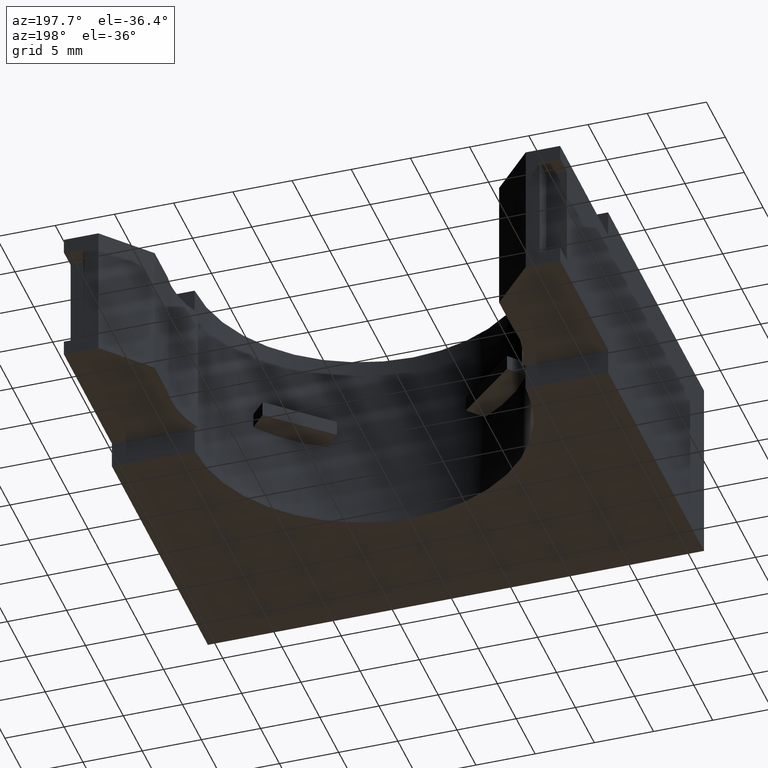
[diagram: clean part render]
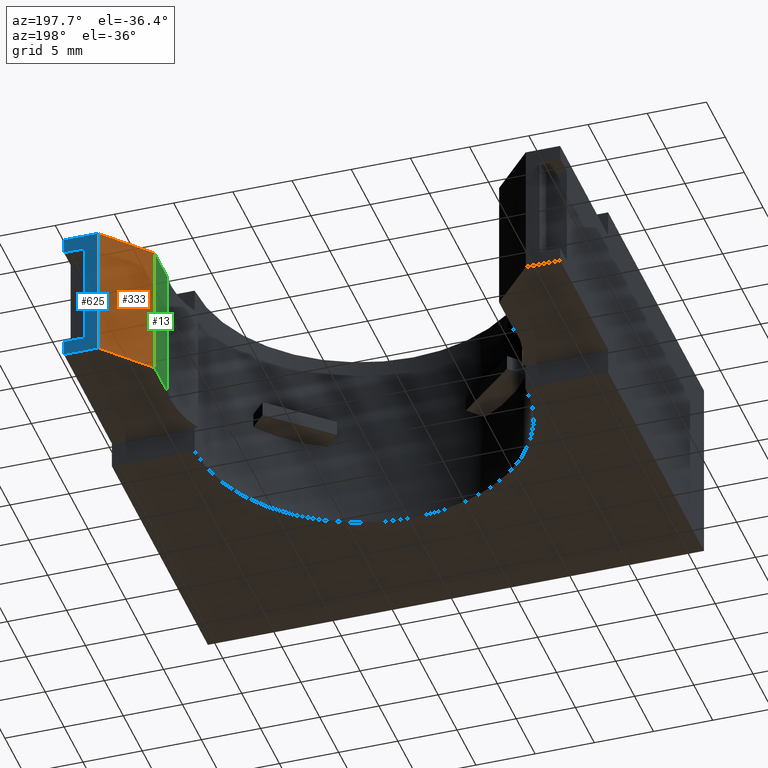
[diagram: same view with three faces highlighted in distinct colors, each labeled with its STEP entity id]
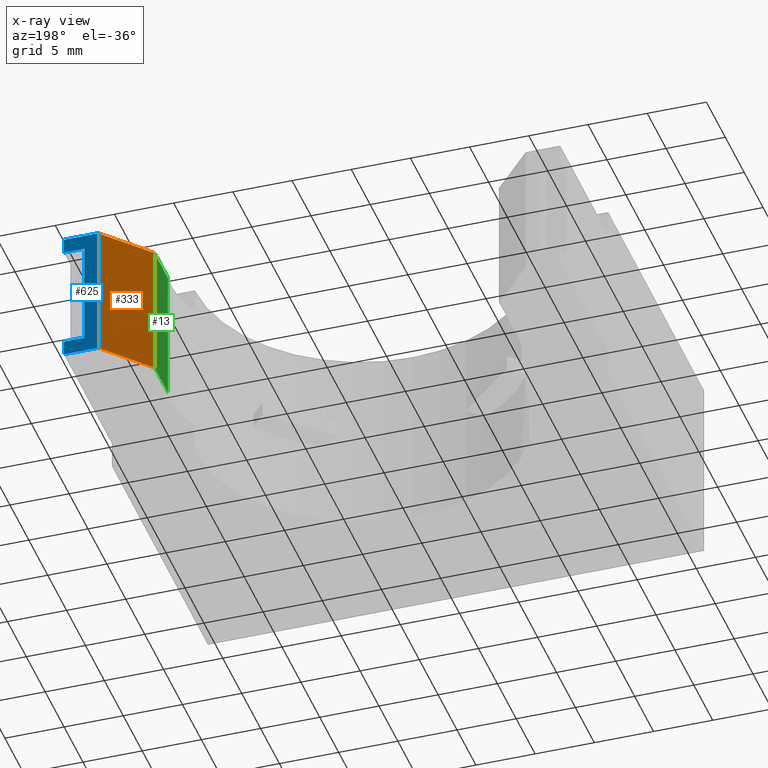
[diagram: x-ray of the same camera — body ghosted, the three highlighted faces saturated]
A machine part, auxiliary view with three faces highlighted in distinct colors.
The next image is the same camera in x-ray (body ghosted, the three faces saturated) — at least one of them is partly hidden behind the body in this view.
Their STEP definitions:

[orange] entity #333 — the highlighted planar face has unit normal (0.7473, -0.6645, 0).
#1 = EDGE_CURVE ( 'NONE', #585, #31, #505, .T. ) ;
#2 = EDGE_CURVE ( 'NONE', #40, #529, #501, .T. ) ;
#3 = ORIENTED_EDGE ( 'NONE', *, *, #39, .T. ) ;
#4 = ORIENTED_EDGE ( 'NONE', *, *, #587, .F. ) ;
#5 = ORIENTED_EDGE ( 'NONE', *, *, #2, .T. ) ;
#6 = ORIENTED_EDGE ( 'NONE', *, *, #1, .T. ) ;
#31 = VERTEX_POINT ( 'NONE', #751 ) ;
#39 = EDGE_CURVE ( 'NONE', #31, #40, #759, .T. ) ;
#40 = VERTEX_POINT ( 'NONE', #785 ) ;
#333 = ADVANCED_FACE ( 'NONE', ( #1083 ), #1081, .F. ) ;
#334 = EDGE_LOOP ( 'NONE', ( #4, #6, #3, #5 ) ) ;
#498 = DIRECTION ( 'NONE',  ( 0.6644573533129691800, 0.7473261842250169500, 0.0000000000000000000 ) ) ;
#499 = VECTOR ( 'NONE', #498, 39.37007874015748100 ) ;
#500 = CARTESIAN_POINT ( 'NONE',  ( 0.5728124999999998400, 0.5950000000000000800, 0.5404500000000002100 ) ) ;
#501 = LINE ( 'NONE', #500, #499 ) ;
#502 = DIRECTION ( 'NONE',  ( -0.6644573533129691800, -0.7473261842250169500, -7.655930763704560700E-017 ) ) ;
#503 = VECTOR ( 'NONE', #502, 39.37007874015748100 ) ;
#504 = CARTESIAN_POINT ( 'NONE',  ( 0.5728124999999998400, 0.5950000000000000800, 0.08954999999999976900 ) ) ;
#505 = LINE ( 'NONE', #504, #503 ) ;
#529 = VERTEX_POINT ( 'NONE', #1501 ) ;
#585 = VERTEX_POINT ( 'NONE', #1405 ) ;
#587 = EDGE_CURVE ( 'NONE', #585, #529, #1404, .T. ) ;
#751 = CARTESIAN_POINT ( 'NONE',  ( 0.5728124999999998400, 0.5950000000000000800, 0.08954999999999976900 ) ) ;
#758 = CARTESIAN_POINT ( 'NONE',  ( 0.5728124999999998400, 0.5950000000000000800, 0.0000000000000000000 ) ) ;
#759 = LINE ( 'NONE', #758, #787 ) ;
#785 = CARTESIAN_POINT ( 'NONE',  ( 0.5728124999999998400, 0.5950000000000000800, 0.5404500000000002100 ) ) ;
#786 = DIRECTION ( 'NONE',  ( -0.0000000000000000000, -0.0000000000000000000, 1.000000000000000000 ) ) ;
#787 = VECTOR ( 'NONE', #786, 39.37007874015748100 ) ;
#1077 = DIRECTION ( 'NONE',  ( 0.6644573533129691800, 0.7473261842250169500, 0.0000000000000000000 ) ) ;
#1078 = DIRECTION ( 'NONE',  ( 0.7473261842250169500, -0.6644573533129691800, 0.0000000000000000000 ) ) ;
#1079 = CARTESIAN_POINT ( 'NONE',  ( 0.5728124999999998400, 0.5950000000000000800, 0.0000000000000000000 ) ) ;
#1080 = AXIS2_PLACEMENT_3D ( 'NONE', #1079, #1078, #1077 ) ;
#1081 = PLANE ( 'NONE',  #1080 ) ;
#1083 = FACE_OUTER_BOUND ( 'NONE', #334, .T. ) ;
#1401 = DIRECTION ( 'NONE',  ( -0.0000000000000000000, -0.0000000000000000000, 1.000000000000000000 ) ) ;
#1402 = VECTOR ( 'NONE', #1401, 39.37007874015748100 ) ;
#1403 = CARTESIAN_POINT ( 'NONE',  ( 0.7106249999999997300, 0.7499999999999998900, 0.0000000000000000000 ) ) ;
#1404 = LINE ( 'NONE', #1403, #1402 ) ;
#1405 = CARTESIAN_POINT ( 'NONE',  ( 0.7106249999999997300, 0.7499999999999998900, 0.08954999999999978300 ) ) ;
#1501 = CARTESIAN_POINT ( 'NONE',  ( 0.7106249999999997300, 0.7499999999999998900, 0.5404500000000002100 ) ) ;

[blue] entity #625 — the highlighted planar face has unit normal (0, -1, 0).
#523 = EDGE_CURVE ( 'NONE', #524, #614, #1560, .T. ) ;
#524 = VERTEX_POINT ( 'NONE', #1556 ) ;
#525 = ORIENTED_EDGE ( 'NONE', *, *, #526, .F. ) ;
#526 = EDGE_CURVE ( 'NONE', #562, #524, #1505, .T. ) ;
#527 = ORIENTED_EDGE ( 'NONE', *, *, #612, .T. ) ;
#528 = ORIENTED_EDGE ( 'NONE', *, *, #584, .F. ) ;
#529 = VERTEX_POINT ( 'NONE', #1501 ) ;
#530 = ORIENTED_EDGE ( 'NONE', *, *, #531, .T. ) ;
#531 = EDGE_CURVE ( 'NONE', #529, #550, #1498, .T. ) ;
#550 = VERTEX_POINT ( 'NONE', #1454 ) ;
#562 = VERTEX_POINT ( 'NONE', #1435 ) ;
#572 = VERTEX_POINT ( 'NONE', #1394 ) ;
#574 = EDGE_CURVE ( 'NONE', #550, #572, #1447, .T. ) ;
#584 = EDGE_CURVE ( 'NONE', #585, #610, #1415, .T. ) ;
#585 = VERTEX_POINT ( 'NONE', #1405 ) ;
#586 = ORIENTED_EDGE ( 'NONE', *, *, #587, .T. ) ;
#587 = EDGE_CURVE ( 'NONE', #585, #529, #1404, .T. ) ;
#610 = VERTEX_POINT ( 'NONE', #1469 ) ;
#612 = EDGE_CURVE ( 'NONE', #562, #610, #1468, .T. ) ;
#614 = VERTEX_POINT ( 'NONE', #1464 ) ;
#615 = ORIENTED_EDGE ( 'NONE', *, *, #523, .F. ) ;
#625 = ADVANCED_FACE ( 'NONE', ( #1639 ), #1638, .F. ) ;
#626 = EDGE_LOOP ( 'NONE', ( #627, #628, #615, #525, #527, #528, #586, #530 ) ) ;
#627 = ORIENTED_EDGE ( 'NONE', *, *, #574, .T. ) ;
#628 = ORIENTED_EDGE ( 'NONE', *, *, #629, .F. ) ;
#629 = EDGE_CURVE ( 'NONE', #614, #572, #1688, .T. ) ;
#1394 = CARTESIAN_POINT ( 'NONE',  ( 0.8249999999999998400, 0.7499999999999998900, 0.4902249999999999700 ) ) ;
#1401 = DIRECTION ( 'NONE',  ( -0.0000000000000000000, -0.0000000000000000000, 1.000000000000000000 ) ) ;
#1402 = VECTOR ( 'NONE', #1401, 39.37007874015748100 ) ;
#1403 = CARTESIAN_POINT ( 'NONE',  ( 0.7106249999999997300, 0.7499999999999998900, 0.0000000000000000000 ) ) ;
#1404 = LINE ( 'NONE', #1403, #1402 ) ;
#1405 = CARTESIAN_POINT ( 'NONE',  ( 0.7106249999999997300, 0.7499999999999998900, 0.08954999999999978300 ) ) ;
#1406 = DIRECTION ( 'NONE',  ( 1.000000000000000000, -0.0000000000000000000, -0.0000000000000000000 ) ) ;
#1407 = VECTOR ( 'NONE', #1406, 39.37007874015748100 ) ;
#1408 = CARTESIAN_POINT ( 'NONE',  ( -0.8250000000000004000, 0.7499999999999998900, 0.08954999999999978300 ) ) ;
#1415 = LINE ( 'NONE', #1408, #1407 ) ;
#1435 = CARTESIAN_POINT ( 'NONE',  ( 0.8249999999999996200, 0.7499999999999998900, 0.1397749999999996800 ) ) ;
#1444 = DIRECTION ( 'NONE',  ( -0.0000000000000000000, -0.0000000000000000000, -1.000000000000000000 ) ) ;
#1445 = VECTOR ( 'NONE', #1444, 39.37007874015748100 ) ;
#1446 = CARTESIAN_POINT ( 'NONE',  ( 0.8249999999999996200, 0.7499999999999998900, 0.6300000000000000000 ) ) ;
#1447 = LINE ( 'NONE', #1446, #1445 ) ;
#1454 = CARTESIAN_POINT ( 'NONE',  ( 0.8249999999999998400, 0.7499999999999998900, 0.5404500000000002100 ) ) ;
#1458 = DIRECTION ( 'NONE',  ( 1.000000000000000000, -0.0000000000000000000, -0.0000000000000000000 ) ) ;
#1459 = VECTOR ( 'NONE', #1458, 39.37007874015748100 ) ;
#1464 = CARTESIAN_POINT ( 'NONE',  ( 0.7568353199999997600, 0.7499999999999998900, 0.4902249999999999700 ) ) ;
#1465 = DIRECTION ( 'NONE',  ( -0.0000000000000000000, -0.0000000000000000000, -1.000000000000000000 ) ) ;
#1466 = VECTOR ( 'NONE', #1465, 39.37007874015748100 ) ;
#1467 = CARTESIAN_POINT ( 'NONE',  ( 0.8249999999999996200, 0.7499999999999998900, 0.6300000000000000000 ) ) ;
#1468 = LINE ( 'NONE', #1467, #1466 ) ;
#1469 = CARTESIAN_POINT ( 'NONE',  ( 0.8249999999999998400, 0.7499999999999998900, 0.08954999999999978300 ) ) ;
#1497 = CARTESIAN_POINT ( 'NONE',  ( -0.8250000000000004000, 0.7499999999999998900, 0.5404500000000002100 ) ) ;
#1498 = LINE ( 'NONE', #1497, #1459 ) ;
#1501 = CARTESIAN_POINT ( 'NONE',  ( 0.7106249999999997300, 0.7499999999999998900, 0.5404500000000002100 ) ) ;
#1502 = DIRECTION ( 'NONE',  ( -1.000000000000000000, 0.0000000000000000000, 0.0000000000000000000 ) ) ;
#1503 = VECTOR ( 'NONE', #1502, 39.37007874015748100 ) ;
#1504 = CARTESIAN_POINT ( 'NONE',  ( 0.8249999999999998400, 0.7499999999999998900, 0.1397749999999996800 ) ) ;
#1505 = LINE ( 'NONE', #1504, #1503 ) ;
#1556 = CARTESIAN_POINT ( 'NONE',  ( 0.7568353199999997600, 0.7499999999999998900, 0.1397749999999996800 ) ) ;
#1557 = DIRECTION ( 'NONE',  ( 0.0000000000000000000, 0.0000000000000000000, 1.000000000000000000 ) ) ;
#1558 = VECTOR ( 'NONE', #1557, 39.37007874015748100 ) ;
#1559 = CARTESIAN_POINT ( 'NONE',  ( 0.7568353199999997600, 0.7499999999999998900, 0.1397749999999996800 ) ) ;
#1560 = LINE ( 'NONE', #1559, #1558 ) ;
#1624 = CARTESIAN_POINT ( 'NONE',  ( -0.8250000000000004000, 0.7499999999999998900, 0.6300000000000000000 ) ) ;
#1637 = AXIS2_PLACEMENT_3D ( 'NONE', #1624, #1644, #1643 ) ;
#1638 = PLANE ( 'NONE',  #1637 ) ;
#1639 = FACE_OUTER_BOUND ( 'NONE', #626, .T. ) ;
#1643 = DIRECTION ( 'NONE',  ( 0.0000000000000000000, -0.0000000000000000000, -1.000000000000000000 ) ) ;
#1644 = DIRECTION ( 'NONE',  ( 0.0000000000000000000, -1.000000000000000000, 0.0000000000000000000 ) ) ;
#1677 = DIRECTION ( 'NONE',  ( 1.000000000000000000, -0.0000000000000000000, -0.0000000000000000000 ) ) ;
#1678 = VECTOR ( 'NONE', #1677, 39.37007874015748100 ) ;
#1687 = CARTESIAN_POINT ( 'NONE',  ( 0.8249999999999998400, 0.7499999999999998900, 0.4902249999999999700 ) ) ;
#1688 = LINE ( 'NONE', #1687, #1678 ) ;

[green] entity #13 — the highlighted planar face has unit normal (1, -0, 0).
#13 = ADVANCED_FACE ( 'NONE', ( #537 ), #749, .F. ) ;
#14 = ORIENTED_EDGE ( 'NONE', *, *, #39, .F. ) ;
#15 = ORIENTED_EDGE ( 'NONE', *, *, #42, .T. ) ;
#31 = VERTEX_POINT ( 'NONE', #751 ) ;
#39 = EDGE_CURVE ( 'NONE', #31, #40, #759, .T. ) ;
#40 = VERTEX_POINT ( 'NONE', #785 ) ;
#41 = EDGE_LOOP ( 'NONE', ( #14, #15, #43, #44 ) ) ;
#42 = EDGE_CURVE ( 'NONE', #31, #441, #757, .T. ) ;
#43 = ORIENTED_EDGE ( 'NONE', *, *, #477, .T. ) ;
#44 = ORIENTED_EDGE ( 'NONE', *, *, #45, .T. ) ;
#45 = EDGE_CURVE ( 'NONE', #475, #40, #784, .T. ) ;
#441 = VERTEX_POINT ( 'NONE', #1344 ) ;
#475 = VERTEX_POINT ( 'NONE', #1167 ) ;
#477 = EDGE_CURVE ( 'NONE', #441, #475, #1166, .T. ) ;
#537 = FACE_OUTER_BOUND ( 'NONE', #41, .T. ) ;
#637 = DIRECTION ( 'NONE',  ( 1.000000000000000000, -0.0000000000000000000, 0.0000000000000000000 ) ) ;
#667 = AXIS2_PLACEMENT_3D ( 'NONE', #713, #637, #717 ) ;
#713 = CARTESIAN_POINT ( 'NONE',  ( 0.5728124999999998400, 0.4571875000000000800, 0.0000000000000000000 ) ) ;
#717 = DIRECTION ( 'NONE',  ( 0.0000000000000000000, 0.0000000000000000000, -1.000000000000000000 ) ) ;
#749 = PLANE ( 'NONE',  #667 ) ;
#751 = CARTESIAN_POINT ( 'NONE',  ( 0.5728124999999998400, 0.5950000000000000800, 0.08954999999999976900 ) ) ;
#754 = DIRECTION ( 'NONE',  ( 0.0000000000000000000, -1.000000000000000000, -1.024442997624099000E-016 ) ) ;
#755 = VECTOR ( 'NONE', #754, 39.37007874015748100 ) ;
#756 = CARTESIAN_POINT ( 'NONE',  ( 0.5728124999999998400, 0.4571875000000000800, 0.08954999999999975500 ) ) ;
#757 = LINE ( 'NONE', #756, #755 ) ;
#758 = CARTESIAN_POINT ( 'NONE',  ( 0.5728124999999998400, 0.5950000000000000800, 0.0000000000000000000 ) ) ;
#759 = LINE ( 'NONE', #758, #787 ) ;
#781 = DIRECTION ( 'NONE',  ( 0.0000000000000000000, 1.000000000000000000, 0.0000000000000000000 ) ) ;
#782 = VECTOR ( 'NONE', #781, 39.37007874015748100 ) ;
#783 = CARTESIAN_POINT ( 'NONE',  ( 0.5728124999999998400, 0.4571875000000000800, 0.5404500000000002100 ) ) ;
#784 = LINE ( 'NONE', #783, #782 ) ;
#785 = CARTESIAN_POINT ( 'NONE',  ( 0.5728124999999998400, 0.5950000000000000800, 0.5404500000000002100 ) ) ;
#786 = DIRECTION ( 'NONE',  ( -0.0000000000000000000, -0.0000000000000000000, 1.000000000000000000 ) ) ;
#787 = VECTOR ( 'NONE', #786, 39.37007874015748100 ) ;
#1163 = DIRECTION ( 'NONE',  ( -0.0000000000000000000, -0.0000000000000000000, 1.000000000000000000 ) ) ;
#1164 = VECTOR ( 'NONE', #1163, 39.37007874015748100 ) ;
#1165 = CARTESIAN_POINT ( 'NONE',  ( 0.5728124999999998400, 0.4571875000000000800, 0.0000000000000000000 ) ) ;
#1166 = LINE ( 'NONE', #1165, #1164 ) ;
#1167 = CARTESIAN_POINT ( 'NONE',  ( 0.5728124999999998400, 0.4571875000000000800, 0.5404500000000002100 ) ) ;
#1344 = CARTESIAN_POINT ( 'NONE',  ( 0.5728124999999998400, 0.4571875000000000800, 0.08954999999999975500 ) ) ;